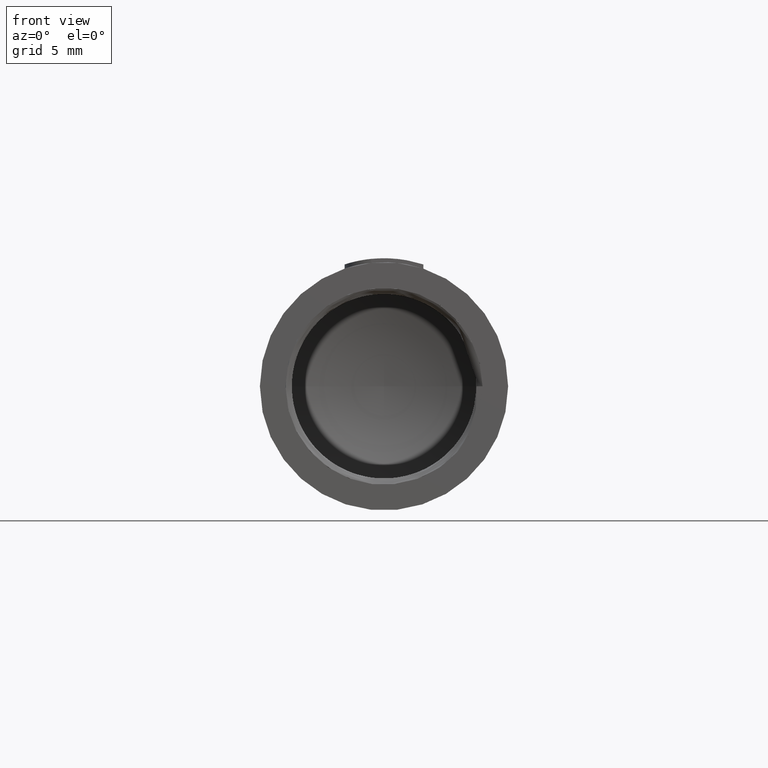
[diagram: clean part render]
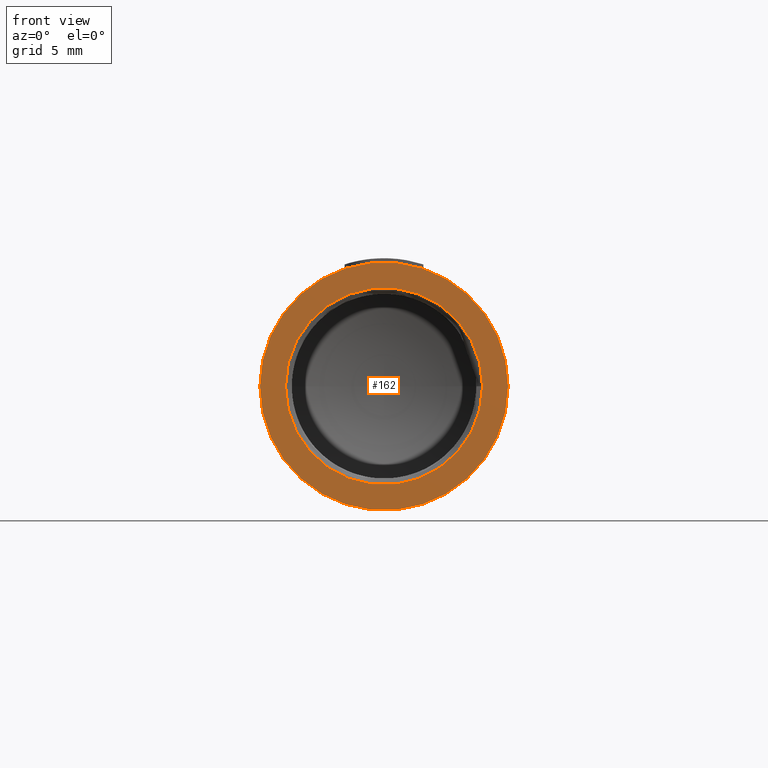
[diagram: same view with one face highlighted and labeled with its STEP entity id]
A machine part, front view. The second image highlights one B-rep face of the part: STEP entity #162.
In plain terms, the highlighted planar face has unit normal (0, 1, 0).
Its self-contained STEP definition (entity closure, byte-faithful):
#162=ADVANCED_FACE('',(#330,#331),#332,.F.);
#330=FACE_BOUND('',#2401,.T.);
#331=FACE_OUTER_BOUND('',#2402,.T.);
#332=PLANE('',#2403);
#2401=EDGE_LOOP('',(#3049,#3050));
#2402=EDGE_LOOP('',(#3051,#3052));
#2403=AXIS2_PLACEMENT_3D('',#3053,#3054,#3055);
#3049=ORIENTED_EDGE('',*,*,#3299,.F.);
#3050=ORIENTED_EDGE('',*,*,#3105,.F.);
#3051=ORIENTED_EDGE('',*,*,#3236,.T.);
#3052=ORIENTED_EDGE('',*,*,#3111,.T.);
#3053=CARTESIAN_POINT('',(-3.85763741731416E-16,-3.46944695195361E-15,-6.3));
#3054=DIRECTION('',(0.0,1.0,0.0));
#3055=DIRECTION('',(-1.0,0.0,6.12323399573677E-17));
#3105=EDGE_CURVE('',#3329,#3326,#3331,.T.);
#3111=EDGE_CURVE('',#3342,#3340,#3343,.T.);
#3236=EDGE_CURVE('',#3340,#3342,#3549,.T.);
#3299=EDGE_CURVE('',#3326,#3329,#3652,.T.);
#3326=VERTEX_POINT('',#4650);
#3329=VERTEX_POINT('',#4654);
#3331=CIRCLE('',#4657,5.0);
#3340=VERTEX_POINT('',#4666);
#3342=VERTEX_POINT('',#4669);
#3343=CIRCLE('',#4670,6.3);
#3549=CIRCLE('',#4938,6.3);
#3652=CIRCLE('',#5088,5.0);
#4650=CARTESIAN_POINT('',(5.0,0.0,-3.06161699786839E-16));
#4654=CARTESIAN_POINT('',(-5.0,0.0,-3.06161699786838E-16));
#4657=AXIS2_PLACEMENT_3D('',#5107,#5108,#5109);
#4666=CARTESIAN_POINT('',(6.3,-6.93889390390723E-15,-3.85763741731417E-16));
#4669=CARTESIAN_POINT('',(-6.3,-7.105427357601E-15,-3.85763741731416E-16));
#4670=AXIS2_PLACEMENT_3D('',#5123,#5124,#5125);
#4938=AXIS2_PLACEMENT_3D('',#5399,#5400,#5401);
#5088=AXIS2_PLACEMENT_3D('',#5513,#5514,#5515);
#5107=CARTESIAN_POINT('',(0.0,0.0,0.0));
#5108=DIRECTION('',(0.0,-1.0,0.0));
#5109=DIRECTION('',(1.0,0.0,-6.12323399573677E-17));
#5123=CARTESIAN_POINT('',(0.0,-6.93889390390723E-15,0.0));
#5124=DIRECTION('',(0.0,-1.0,0.0));
#5125=DIRECTION('',(1.0,0.0,-6.12323399573677E-17));
#5399=CARTESIAN_POINT('',(0.0,-6.93889390390723E-15,0.0));
#5400=DIRECTION('',(0.0,-1.0,0.0));
#5401=DIRECTION('',(1.0,0.0,-6.12323399573677E-17));
#5513=CARTESIAN_POINT('',(0.0,0.0,0.0));
#5514=DIRECTION('',(0.0,-1.0,0.0));
#5515=DIRECTION('',(1.0,0.0,-6.12323399573677E-17));